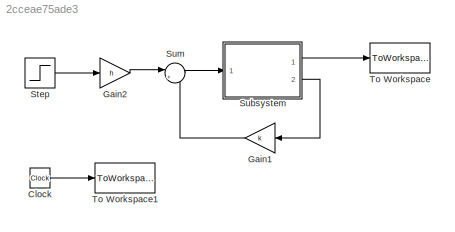
MODEL slx_2cceae75ade3
KIND model
CONFIG AbsTol = auto
CONFIG EnableMultiTasking = on
CONFIG FixedStep = 0.001
CONFIG MaxStep = auto
CONFIG MinStep = auto
CONFIG RelTol = 1e-3
CONFIG SampleTimeConstraint = Unconstrained
CONFIG Solver = ode4
CONFIG SolverName = ode4
CONFIG StartTime = 0.0
CONFIG StopTime = 5
BLOCK [Clock] Clock
BLOCK [Gain] Gain1
  Gain = k
  Multiplication = Matrix(K*u)
  OutDataTypeStr = Inherit: Inherit via internal rule
  ParamDataTypeStr = Inherit: Inherit via internal rule
  SaturateOnIntegerOverflow = off
BLOCK [Gain] Gain2
  Gain = h
  OutDataTypeStr = Inherit: Inherit via internal rule
  ParamDataTypeStr = Inherit: Inherit via internal rule
  SaturateOnIntegerOverflow = off
BLOCK [Step] Step
  SampleTime = 0
  Time = 0
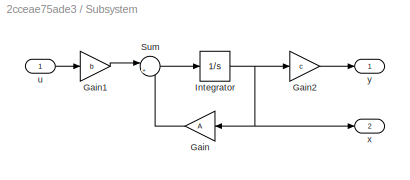
BLOCK [SubSystem] Subsystem
  Ports = [1, 2]
  RequestExecContextInheritance = off
BLOCK [Gain] Subsystem/Gain
  Gain = A
  Multiplication = Matrix(K*u)
BLOCK [Gain] Subsystem/Gain1
  Gain = b
  Multiplication = Matrix(K*u)
BLOCK [Gain] Subsystem/Gain2
  Gain = c
  Multiplication = Matrix(K*u)
BLOCK [Integrator] Subsystem/Integrator
  Ports = [1, 1]
BLOCK [Sum] Subsystem/Sum
  IconShape = round
  Inputs = |++
  Ports = [2, 1]
BLOCK [Inport] Subsystem/u
  IconDisplay = Port number
BLOCK [Outport] Subsystem/x
  IconDisplay = Port number
  Port = 2
BLOCK [Outport] Subsystem/y
  IconDisplay = Port number
BLOCK [Sum] Sum
  IconShape = round
  Inputs = |++
  Ports = [2, 1]
BLOCK [ToWorkspace] To Workspace
  MaxDataPoints = inf
  Ports = [1]
  SampleTime = -1
  VariableName = y
BLOCK [ToWorkspace] To Workspace1
  MaxDataPoints = inf
  Ports = [1]
  SampleTime = -1
  VariableName = t
LINE Clock:1 -> To Workspace1:1
LINE Gain1:1 -> Sum:2
LINE Gain2:1 -> Sum:1
LINE Step:1 -> Gain2:1
LINE Subsystem/Gain1:1 -> Subsystem/Sum:1
LINE Subsystem/Gain2:1 -> Subsystem/y:1
LINE Subsystem/Gain:1 -> Subsystem/Sum:2
NET Subsystem/Integrator:1 -> Subsystem/Gain2:1, Subsystem/Gain:1, Subsystem/x:1
LINE Subsystem/Sum:1 -> Subsystem/Integrator:1
LINE Subsystem/u:1 -> Subsystem/Gain1:1
LINE Subsystem:1 -> To Workspace:1
LINE Subsystem:2 -> Gain1:1
LINE Sum:1 -> Subsystem:1
note: NET lines group one-source signal fan-out (src -> all destinations, sorted); 1:1 wires keep LINE
